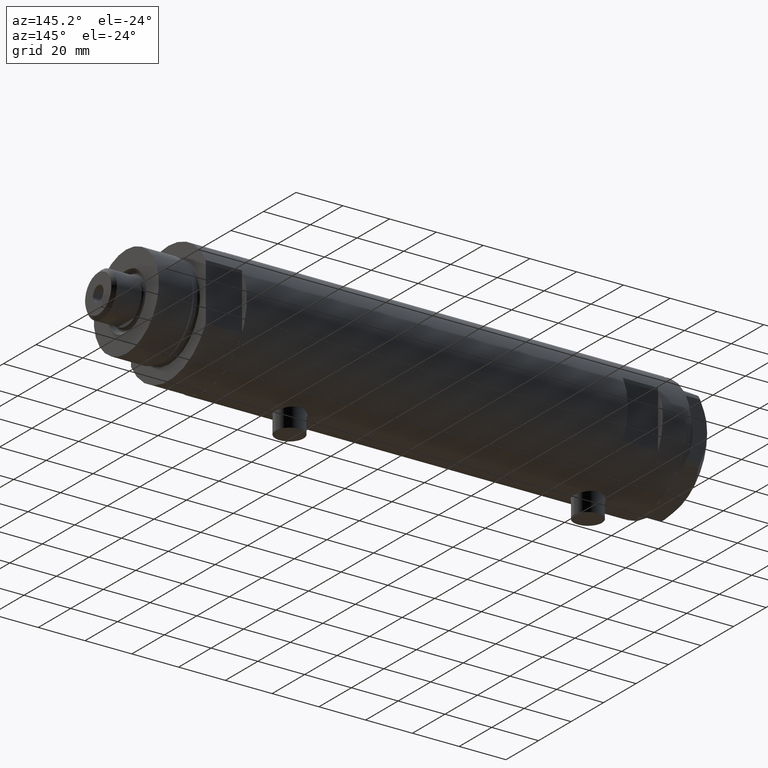
[diagram: clean part render]
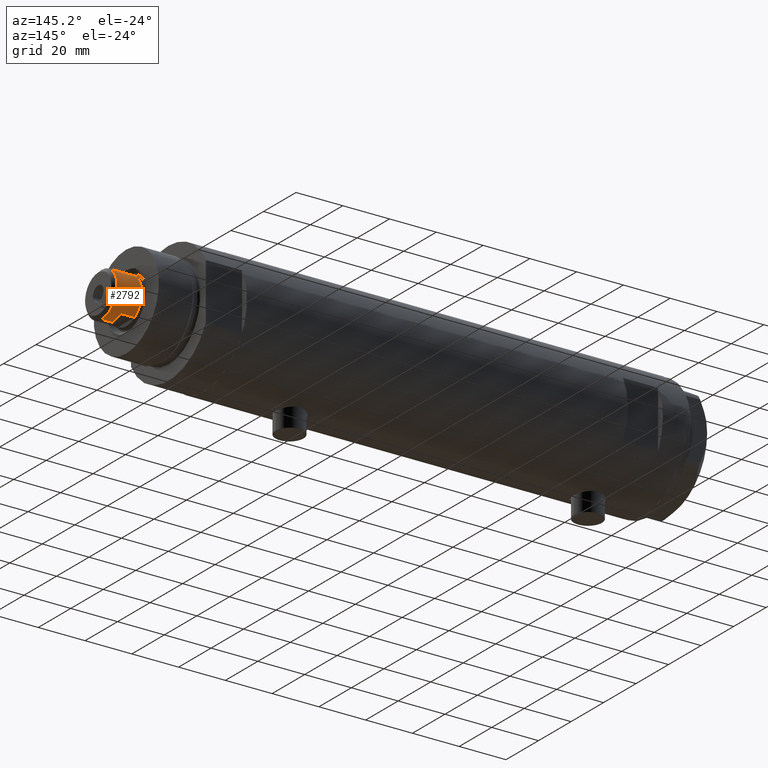
[diagram: same view with one face highlighted and labeled with its STEP entity id]
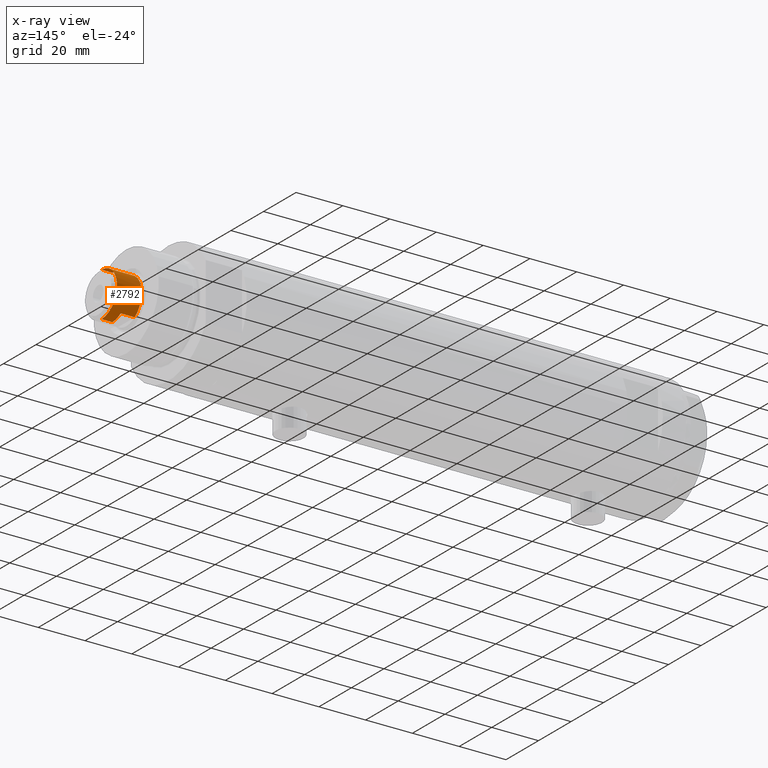
[diagram: x-ray of the same camera — body ghosted, the highlighted face saturated]
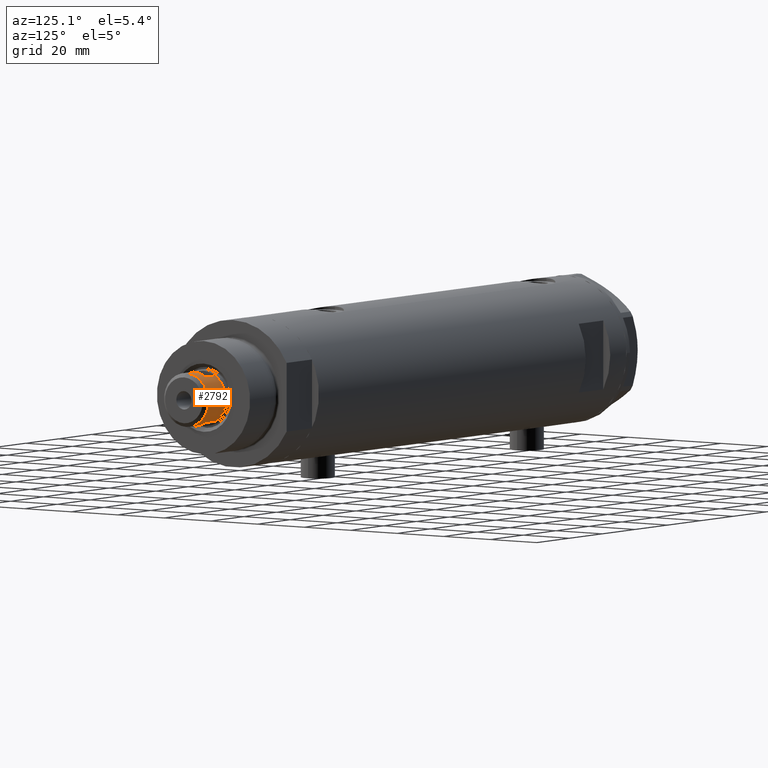
[diagram: same view with one face highlighted and labeled with its STEP entity id]
A machine part, auxiliary view. The second image highlights one B-rep face of the part: STEP entity #2792.
The next image is the same camera in x-ray: the body ghosted, the highlighted face saturated — about 0% of this face is hidden behind the body in this view.
A second angle (auxiliary view) of the same face is appended — the face is thin or edge-on in the first view.
In plain terms, the highlighted cylindrical surface (edge-blend (fillet) strip) has radius 9.5 mm, axis along (-1, -0, 0).
Its self-contained STEP definition (entity closure, byte-faithful):
#13 = EDGE_CURVE ( 'NONE', #2151, #2946, #2239, .T. ) ;
#15 = DIRECTION ( 'NONE',  ( 0.000000000000000000, 0.000000000000000000, 1.000000000000000000 ) ) ;
#269 = AXIS2_PLACEMENT_3D ( 'NONE', #310, #15, #1527 ) ;
#285 = CARTESIAN_POINT ( 'NONE',  ( 7.982950582334830791, 5.149999999999999467, 203.5999999999999943 ) ) ;
#296 = LINE ( 'NONE', #4448, #4602 ) ;
#310 = CARTESIAN_POINT ( 'NONE',  ( 0.000000000000000000, 0.000000000000000000, 197.5999999999999943 ) ) ;
#325 = CARTESIAN_POINT ( 'NONE',  ( -9.500000000000001776, 0.000000000000000000, 203.5999999999999943 ) ) ;
#372 = CARTESIAN_POINT ( 'NONE',  ( 7.982950582334830791, 5.149999999999999467, 203.5999999999999943 ) ) ;
#499 = ORIENTED_EDGE ( 'NONE', *, *, #673, .T. ) ;
#563 = EDGE_CURVE ( 'NONE', #4473, #1744, #1377, .T. ) ;
#586 = VECTOR ( 'NONE', #1510, 1000.000000000000000 ) ;
#669 = CARTESIAN_POINT ( 'NONE',  ( 0.000000000000000000, 0.000000000000000000, 203.5999999999999943 ) ) ;
#670 = AXIS2_PLACEMENT_3D ( 'NONE', #778, #2313, #2389 ) ;
#673 = EDGE_CURVE ( 'NONE', #4569, #3243, #3330, .T. ) ;
#778 = CARTESIAN_POINT ( 'NONE',  ( 0.000000000000000000, 0.000000000000000000, 203.5999999999999943 ) ) ;
#801 = CARTESIAN_POINT ( 'NONE',  ( 0.000000000000000000, 0.000000000000000000, 208.2000000000000171 ) ) ;
#1070 = DIRECTION ( 'NONE',  ( 1.000000000000000000, 0.000000000000000000, 0.000000000000000000 ) ) ;
#1082 = LINE ( 'NONE', #325, #1435 ) ;
#1178 = VECTOR ( 'NONE', #4363, 1000.000000000000000 ) ;
#1377 = CIRCLE ( 'NONE', #2164, 9.500000000000000000 ) ;
#1418 = VERTEX_POINT ( 'NONE', #2325 ) ;
#1430 = EDGE_LOOP ( 'NONE', ( #2681, #3611, #3061, #499, #4117, #4028, #2172, #2992 ) ) ;
#1435 = VECTOR ( 'NONE', #4792, 1000.000000000000000 ) ;
#1510 = DIRECTION ( 'NONE',  ( -0.000000000000000000, -0.000000000000000000, -1.000000000000000000 ) ) ;
#1527 = DIRECTION ( 'NONE',  ( 1.000000000000000000, 0.000000000000000000, 0.000000000000000000 ) ) ;
#1733 = EDGE_CURVE ( 'NONE', #4473, #2067, #296, .T. ) ;
#1744 = VERTEX_POINT ( 'NONE', #4475 ) ;
#1815 = DIRECTION ( 'NONE',  ( 0.000000000000000000, 0.000000000000000000, 1.000000000000000000 ) ) ;
#1842 = CARTESIAN_POINT ( 'NONE',  ( 9.500000000000001776, 1.163414459189985682E-15, 203.5999999999999943 ) ) ;
#2067 = VERTEX_POINT ( 'NONE', #3231 ) ;
#2151 = VERTEX_POINT ( 'NONE', #2877 ) ;
#2164 = AXIS2_PLACEMENT_3D ( 'NONE', #3591, #1815, #1070 ) ;
#2172 = ORIENTED_EDGE ( 'NONE', *, *, #563, .T. ) ;
#2203 = DIRECTION ( 'NONE',  ( 0.000000000000000000, 0.000000000000000000, 1.000000000000000000 ) ) ;
#2239 = CIRCLE ( 'NONE', #2941, 9.500000000000001776 ) ;
#2277 = DIRECTION ( 'NONE',  ( -0.000000000000000000, -0.000000000000000000, -1.000000000000000000 ) ) ;
#2307 = DIRECTION ( 'NONE',  ( 0.000000000000000000, 0.000000000000000000, -1.000000000000000000 ) ) ;
#2313 = DIRECTION ( 'NONE',  ( -0.000000000000000000, -0.000000000000000000, -1.000000000000000000 ) ) ;
#2325 = CARTESIAN_POINT ( 'NONE',  ( 9.500000000000000000, 1.163414459189985485E-15, 203.5999999999999943 ) ) ;
#2389 = DIRECTION ( 'NONE',  ( -1.000000000000000000, 0.000000000000000000, 0.000000000000000000 ) ) ;
#2438 = EDGE_CURVE ( 'NONE', #3243, #2067, #3045, .T. ) ;
#2638 = EDGE_CURVE ( 'NONE', #1418, #4569, #3030, .T. ) ;
#2681 = ORIENTED_EDGE ( 'NONE', *, *, #13, .T. ) ;
#2790 = CARTESIAN_POINT ( 'NONE',  ( -7.982950582334830791, 5.149999999999999467, 203.5999999999999943 ) ) ;
#2792 = ADVANCED_FACE ( 'NONE', ( #4163 ), #3867, .T. ) ;
#2877 = CARTESIAN_POINT ( 'NONE',  ( -9.500000000000001776, 0.000000000000000000, 208.2000000000000171 ) ) ;
#2941 = AXIS2_PLACEMENT_3D ( 'NONE', #801, #2307, #3444 ) ;
#2946 = VERTEX_POINT ( 'NONE', #3856 ) ;
#2992 = ORIENTED_EDGE ( 'NONE', *, *, #3560, .F. ) ;
#3030 = CIRCLE ( 'NONE', #4516, 9.500000000000000000 ) ;
#3045 = CIRCLE ( 'NONE', #269, 9.500000000000035527 ) ;
#3061 = ORIENTED_EDGE ( 'NONE', *, *, #2638, .T. ) ;
#3231 = CARTESIAN_POINT ( 'NONE',  ( -7.982950582334829015, 5.150000000000066969, 197.5999999999999943 ) ) ;
#3243 = VERTEX_POINT ( 'NONE', #4566 ) ;
#3330 = LINE ( 'NONE', #372, #586 ) ;
#3347 = DIRECTION ( 'NONE',  ( 1.000000000000000000, 0.000000000000000000, 0.000000000000000000 ) ) ;
#3444 = DIRECTION ( 'NONE',  ( 1.000000000000000000, 0.000000000000000000, 0.000000000000000000 ) ) ;
#3560 = EDGE_CURVE ( 'NONE', #2151, #1744, #1082, .T. ) ;
#3591 = CARTESIAN_POINT ( 'NONE',  ( 0.000000000000000000, 0.000000000000000000, 203.5999999999999943 ) ) ;
#3611 = ORIENTED_EDGE ( 'NONE', *, *, #4642, .T. ) ;
#3694 = LINE ( 'NONE', #1842, #1178 ) ;
#3856 = CARTESIAN_POINT ( 'NONE',  ( 9.500000000000001776, 1.163414459189985682E-15, 208.2000000000000171 ) ) ;
#3867 = CYLINDRICAL_SURFACE ( 'NONE', #670, 9.500000000000001776 ) ;
#4028 = ORIENTED_EDGE ( 'NONE', *, *, #1733, .F. ) ;
#4117 = ORIENTED_EDGE ( 'NONE', *, *, #2438, .T. ) ;
#4163 = FACE_OUTER_BOUND ( 'NONE', #1430, .T. ) ;
#4363 = DIRECTION ( 'NONE',  ( -0.000000000000000000, -0.000000000000000000, -1.000000000000000000 ) ) ;
#4448 = CARTESIAN_POINT ( 'NONE',  ( -7.982950582334830791, 5.149999999999999467, 203.5999999999999943 ) ) ;
#4473 = VERTEX_POINT ( 'NONE', #2790 ) ;
#4475 = CARTESIAN_POINT ( 'NONE',  ( -9.500000000000000000, 0.000000000000000000, 203.5999999999999943 ) ) ;
#4516 = AXIS2_PLACEMENT_3D ( 'NONE', #669, #2203, #3347 ) ;
#4566 = CARTESIAN_POINT ( 'NONE',  ( 7.982950582334830791, 5.149999999999999467, 197.5999999999999943 ) ) ;
#4569 = VERTEX_POINT ( 'NONE', #285 ) ;
#4602 = VECTOR ( 'NONE', #2277, 1000.000000000000000 ) ;
#4642 = EDGE_CURVE ( 'NONE', #2946, #1418, #3694, .T. ) ;
#4792 = DIRECTION ( 'NONE',  ( -0.000000000000000000, -0.000000000000000000, -1.000000000000000000 ) ) ;